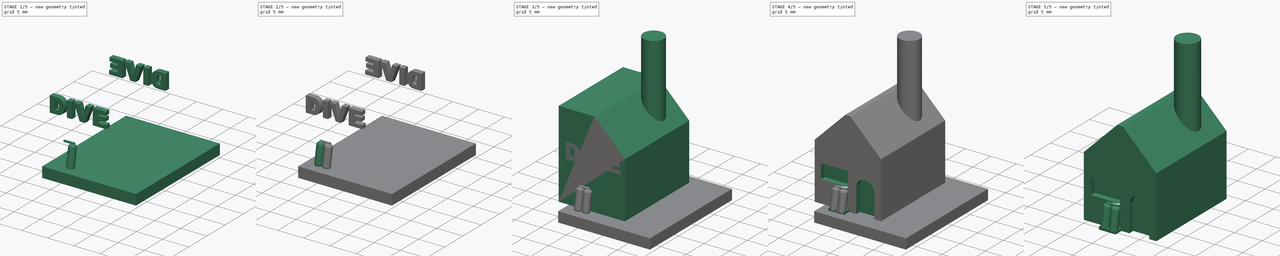
[diagram: build sequence overview — one tinted view per stage of 5, left to right]
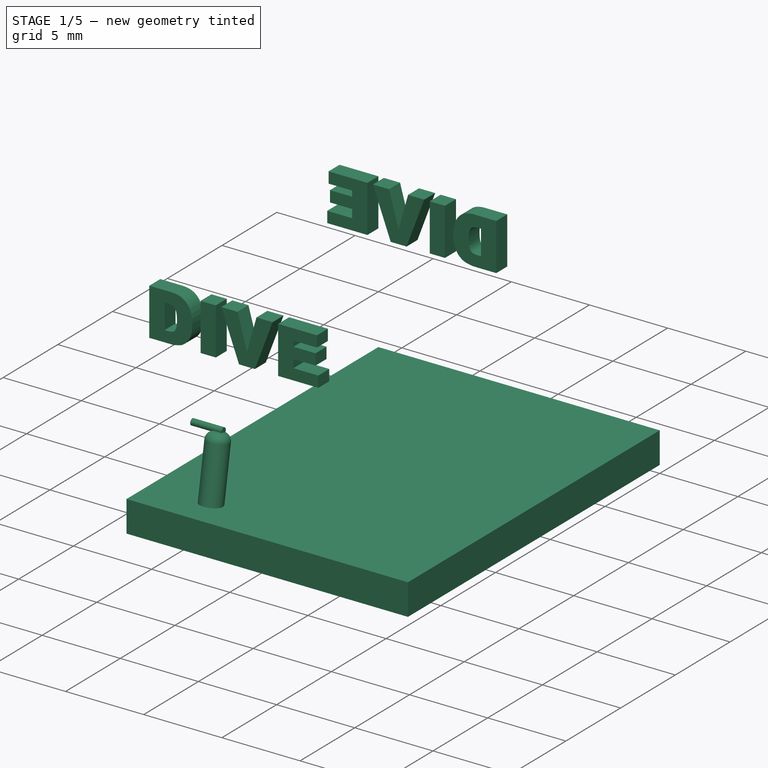
[diagram: stage 1 of 5 — iso view after this stage's code; geometry added in this stage tinted green]
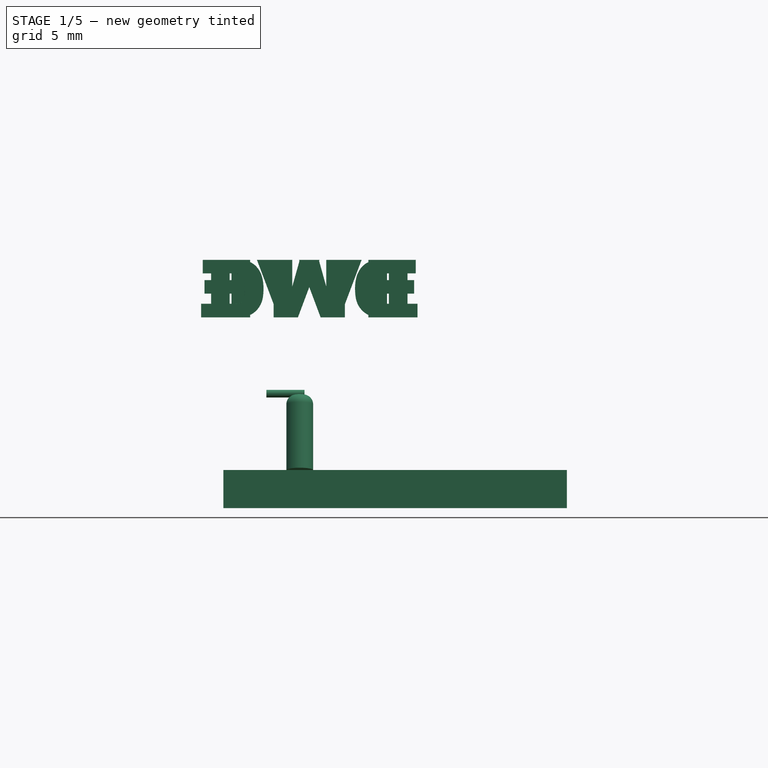
[diagram: stage 1 of 5 — front view after this stage's code; geometry added in this stage tinted green]
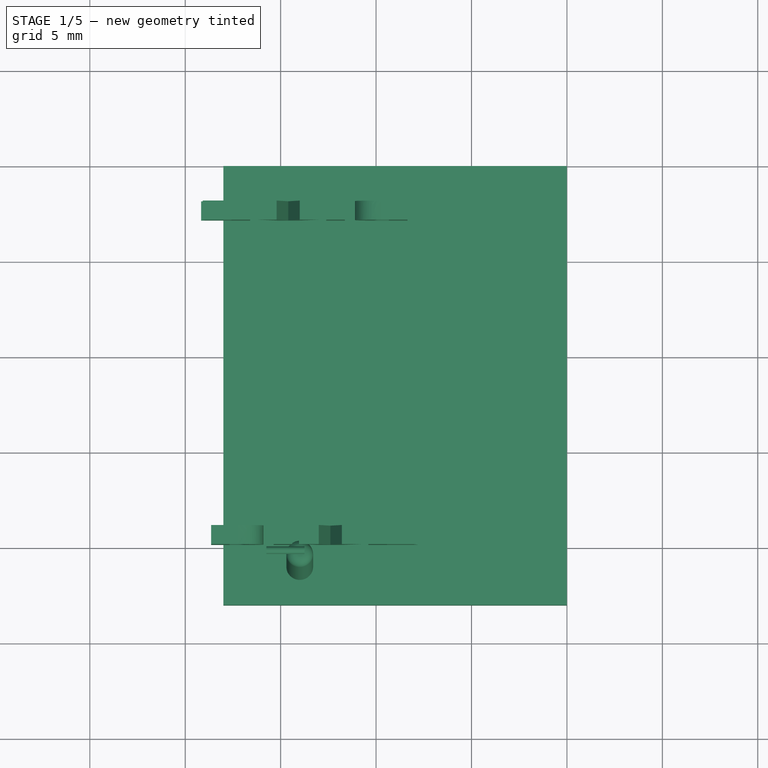
[diagram: stage 1 of 5 — top view after this stage's code; geometry added in this stage tinted green]
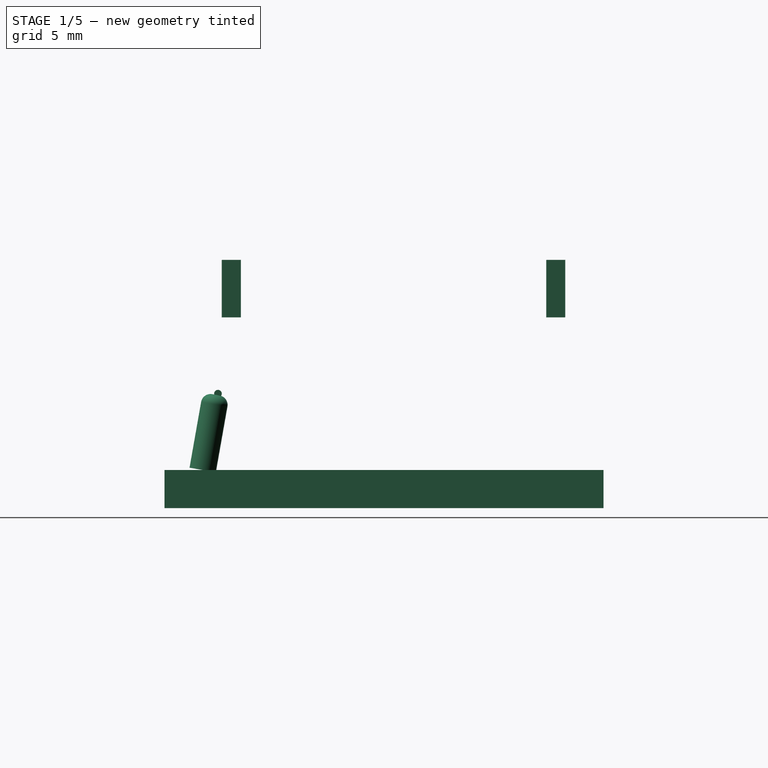
[diagram: stage 1 of 5 — right view after this stage's code; geometry added in this stage tinted green]
FCSTD DOCUMENT  (FreeCAD 0.16R6706 (Git))
Label: Haus
License: All rights reserved
LicenseURL: http://en.wikipedia.org/wiki/All_rights_reserved
objects: Part::MultiFuse×5, Part::Cut×4, Part::Cylinder×4, Part::Fillet×4, Sketcher::SketchObject×3, Part::Box×3, Part::Extrusion×3, PartDesign::Pad×2, PartDesign::Chamfer×2, Part::Part2DObjectPython×2, PartDesign::Pocket×1, PartDesign::Fillet×1
note: 37 computed .brp shape members not serialized (recipe doc carries the construction recipe); baked Part::Feature solids carry a one-line shape summary decoded from their .brp

FEATURE [Part::Cylinder] Cylinder002  label="Zylinder002"
  Angle = 360
  Height = 4
  Placement = pos=(6,-1,0) rot=(-1,0,0;0.174533rad)
  Radius = 0.7
FEATURE [Part::Fillet] Fillet002
  Base = -> Cylinder002
  Edges = 1 edges r=0.5: [Edge1]
FEATURE [Part::Cylinder] Cylinder003  label="Zylinder003"
  Angle = 360
  Height = 2
  Placement = pos=(4.25,-0.2,4) rot=(0,1,0;1.5708rad)
  Radius = 0.2
FEATURE [Part::Part2DObjectPython] ShapeString  # Draft 2D object (typed FeaturePython)
  FontFile = <path>
  Placement = pos=(1,0,8) rot=(1,0,0;1.5708rad)
  Size = 4
  String = DIVE
  Tracking = 0
FEATURE [Part::Extrusion] Extrude
  Base = -> ShapeString
  Dir = (0,1,0)
  Solid = false
FEATURE [Part::Part2DObjectPython] ShapeString001  # Draft 2D object (typed FeaturePython)
  FontFile = <path>
  Placement = pos=(1,0,8) rot=(1,0,0;1.5708rad)
  Size = 4
  String = DIVE
  Tracking = 0
FEATURE [Part::Extrusion] Extrude002
  Base = -> ShapeString001
  Dir = (0,1,0)
  Placement = pos=(13,18,0) rot=(0,0,1;3.14159rad)
  Solid = false
FEATURE [Part::Box] Box002  label="Würfel002"
  Height = 2
  Length = 18
  Placement = pos=(2,-3,-2) rot=(0,0,1;0rad)
  Width = 23
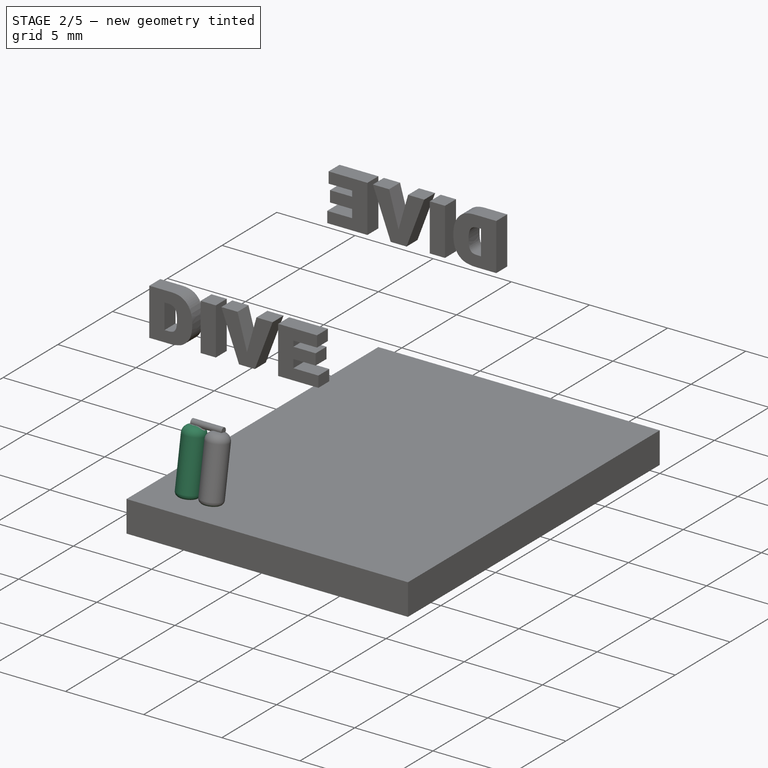
[diagram: stage 2 of 5 — iso view after this stage's code; geometry added in this stage tinted green]
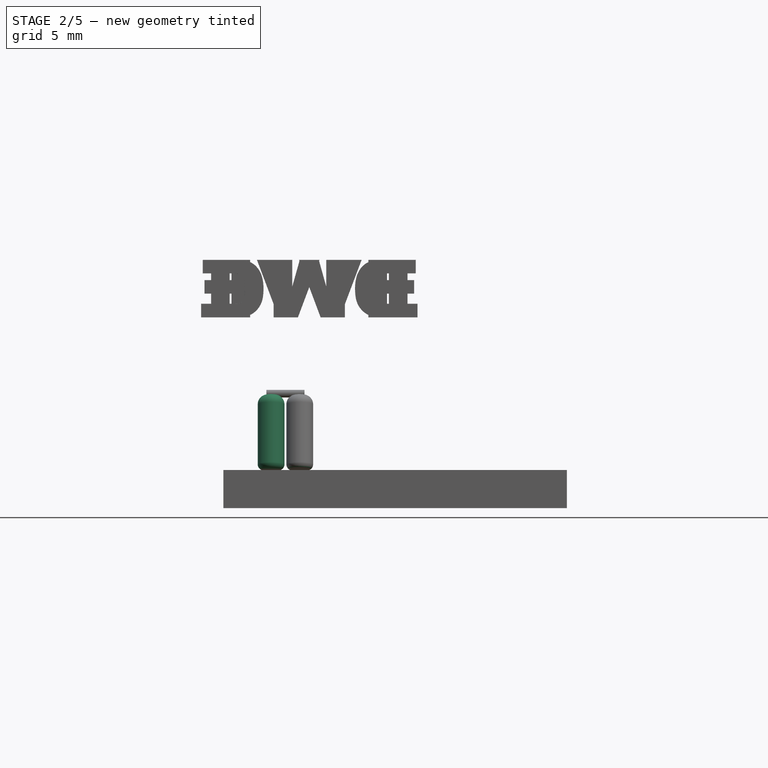
[diagram: stage 2 of 5 — front view after this stage's code; geometry added in this stage tinted green]
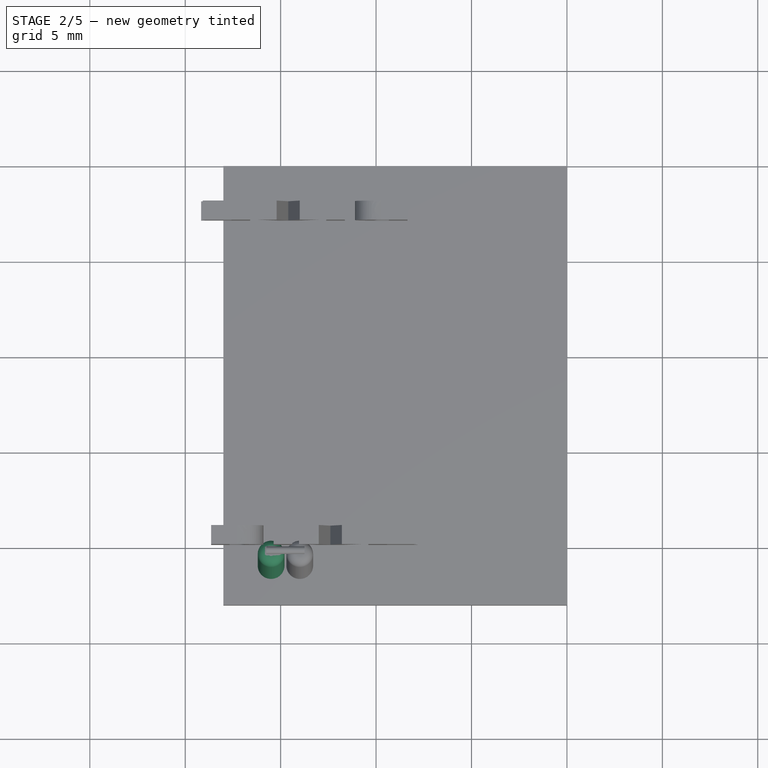
[diagram: stage 2 of 5 — top view after this stage's code; geometry added in this stage tinted green]
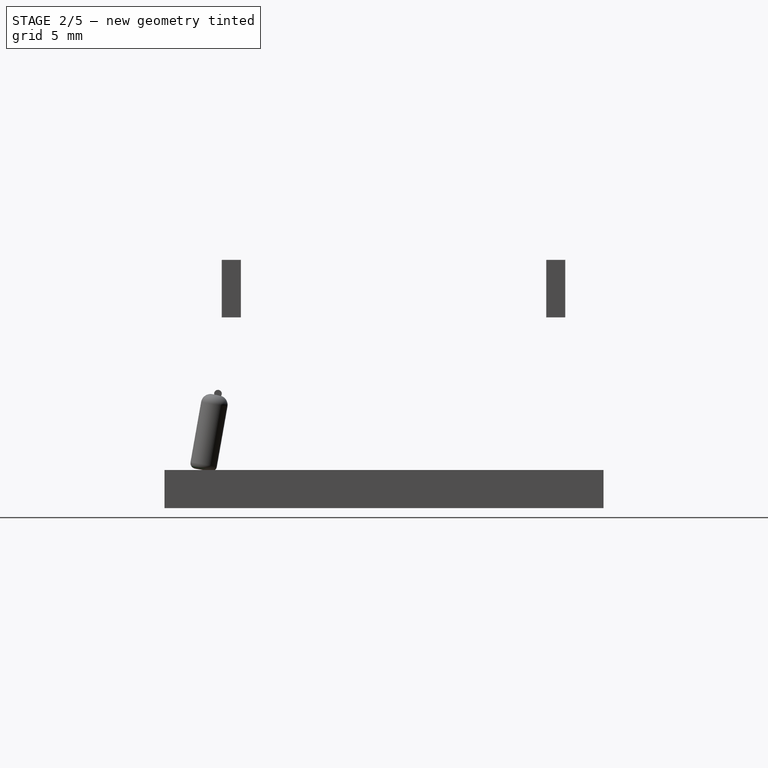
[diagram: stage 2 of 5 — right view after this stage's code; geometry added in this stage tinted green]
FEATURE [Part::Cylinder] Cylinder001  label="Zylinder001"
  Angle = 360
  Height = 4
  Placement = pos=(4.5,-1,0) rot=(-1,0,0;0.174533rad)
  Radius = 0.7
FEATURE [Part::Fillet] Fillet001
  Base = -> Cylinder001
  Edges = 1 edges r=0.5: [Edge1]
FEATURE [Part::Fillet] Fillet003
  Base = -> Fillet001
  Edges = 1 edges r=0.3: [Edge3]
FEATURE [Part::Fillet] Fillet004
  Base = -> Fillet002
  Edges = 1 edges r=0.3: [Edge3]
FEATURE [Part::MultiFuse] Fusion001
  Shapes = -> [Fillet003,Fillet004]
FEATURE [Part::MultiFuse] Fusion002  label="D-20"
  Shapes = -> [Fusion001,Cylinder003]
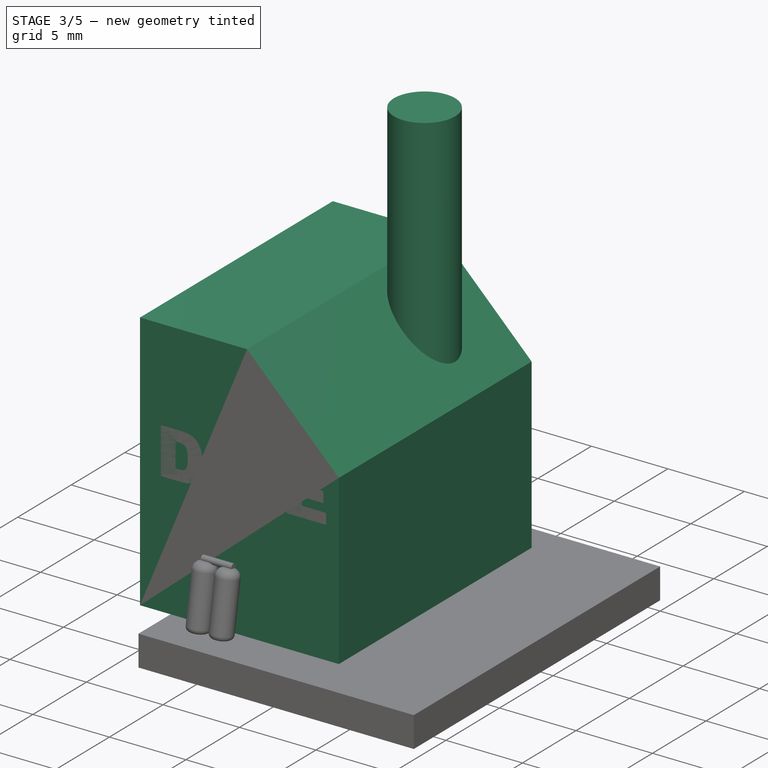
[diagram: stage 3 of 5 — iso view after this stage's code; geometry added in this stage tinted green]
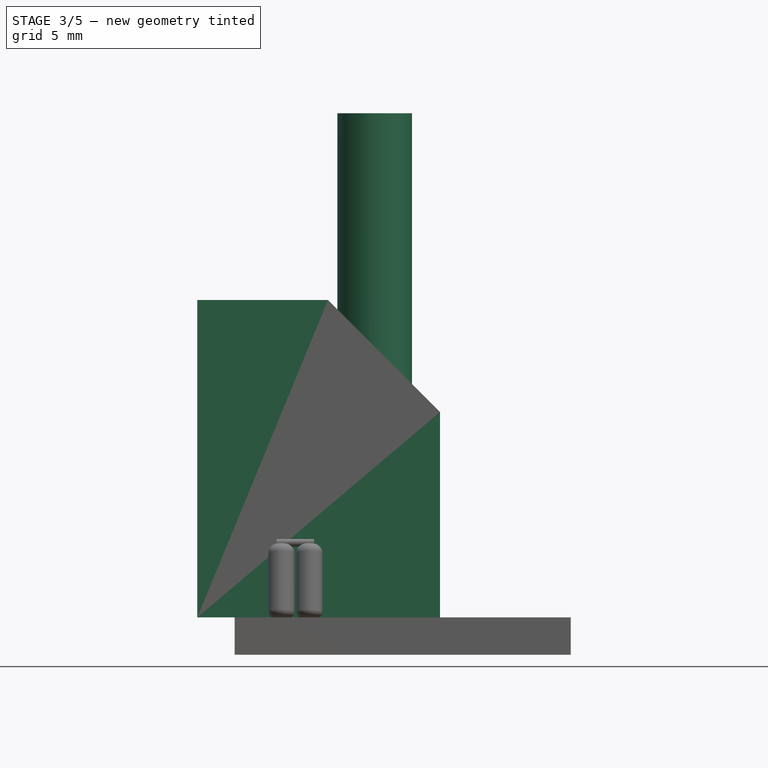
[diagram: stage 3 of 5 — front view after this stage's code; geometry added in this stage tinted green]
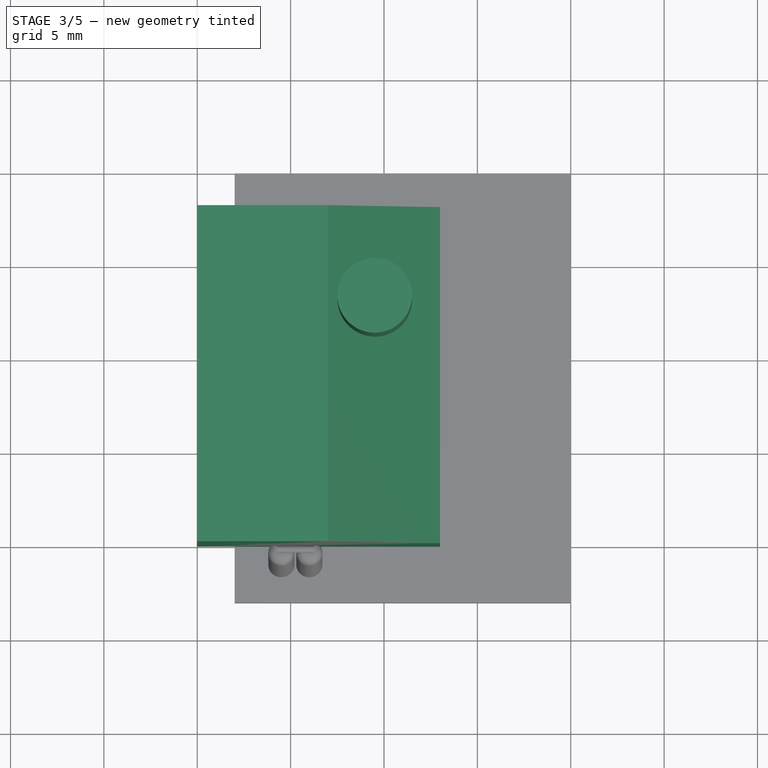
[diagram: stage 3 of 5 — top view after this stage's code; geometry added in this stage tinted green]
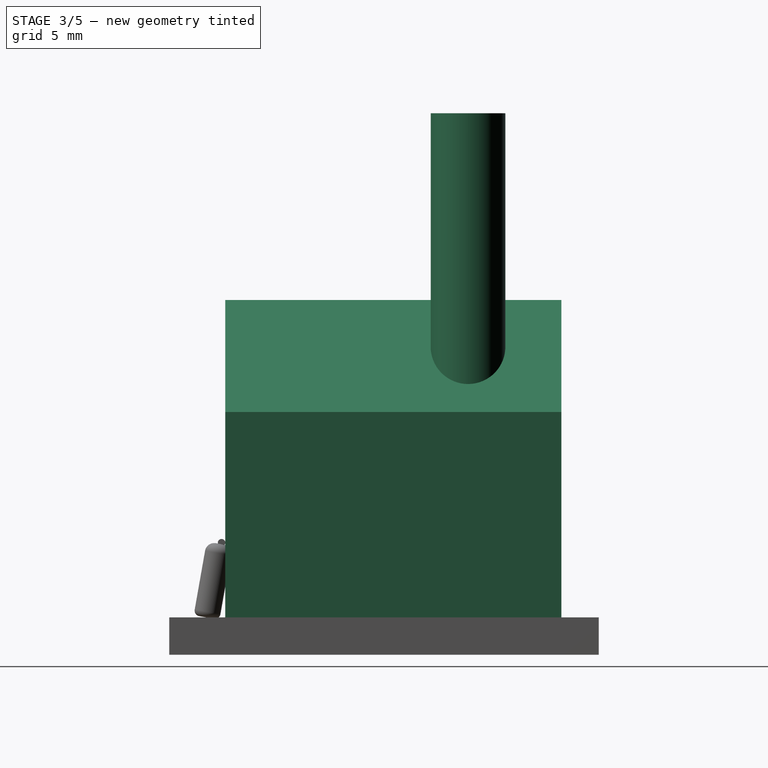
[diagram: stage 3 of 5 — right view after this stage's code; geometry added in this stage tinted green]
FEATURE [Sketcher::SketchObject] Sketch
  sketch-geometry (4):
    g0: LineSegment StartX=0 StartY=18 StartZ=0 EndX=13 EndY=18 EndZ=0
    g1: LineSegment StartX=13 StartY=18 StartZ=0 EndX=13 EndY=0 EndZ=0
    g2: LineSegment StartX=13 StartY=0 StartZ=0 EndX=0 EndY=0 EndZ=0
    g3: LineSegment StartX=0 StartY=0 StartZ=0 EndX=0 EndY=18 EndZ=0
  constraints (11):
    c: Coincident(g0,g1)
    c: Coincident(g1,g2)
    c: Coincident(g2,g3)
    c: Coincident(g3,g0)
    c: Horizontal(g0)
    c: Horizontal(g2)
    c: Vertical(g1)
    c: Vertical(g3)
    c: DistanceX(g2,g1) = 13
    c: DistanceY(g1,g1) = 18
    c: Coincident(g-1,g2)
FEATURE [PartDesign::Pad] Pad
  Length = 17
  Length2 = 100
  Sketch = -> Sketch
  Type = 0
FEATURE [PartDesign::Chamfer] Chamfer
  Base = -> Pad [Edge7]
  Size = 6
FEATURE [Sketcher::SketchObject] Sketch002
  sketch-geometry (1):
    g0: Circle CenterX=6.51884 CenterY=9.61444 CenterZ=0 NormalX=0 NormalY=0 NormalZ=1 Radius=4
  constraints (1):
    c: Radius(g0) = 4
FEATURE [PartDesign::Pad] Pad001
  Length = 5
  Length2 = 100
  Sketch = -> Sketch002
  Type = 0
FEATURE [PartDesign::Fillet] Fillet
  Base = -> Pad001 [Edge3]
  Radius = 3
FEATURE [Part::Cylinder] Cylinder  label="Zylinder"
  Angle = 360
  Height = 16
  Placement = pos=(9.5,13,11) rot=(0,0,1;0rad)
  Radius = 2
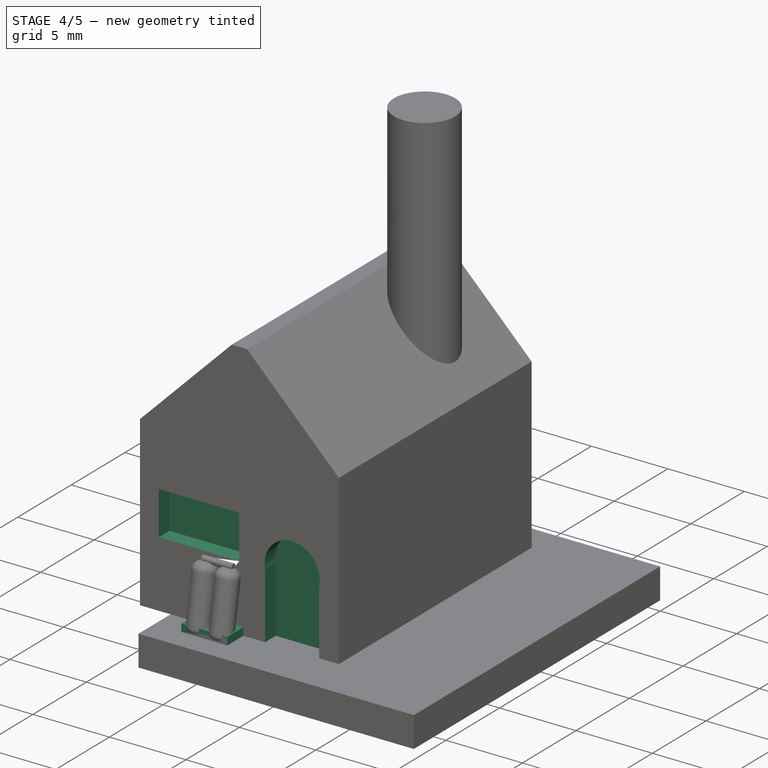
[diagram: stage 4 of 5 — iso view after this stage's code; geometry added in this stage tinted green]
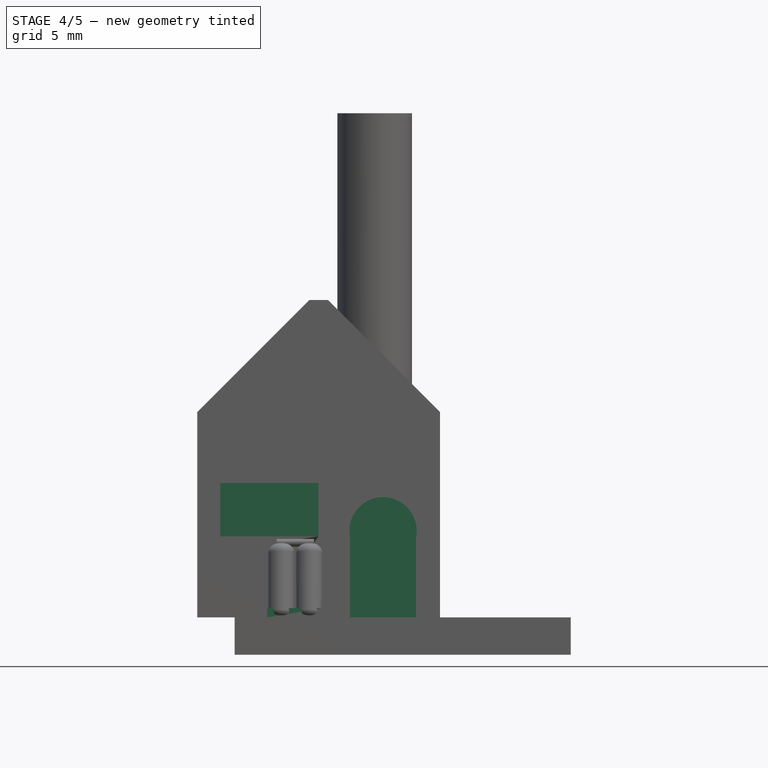
[diagram: stage 4 of 5 — front view after this stage's code; geometry added in this stage tinted green]
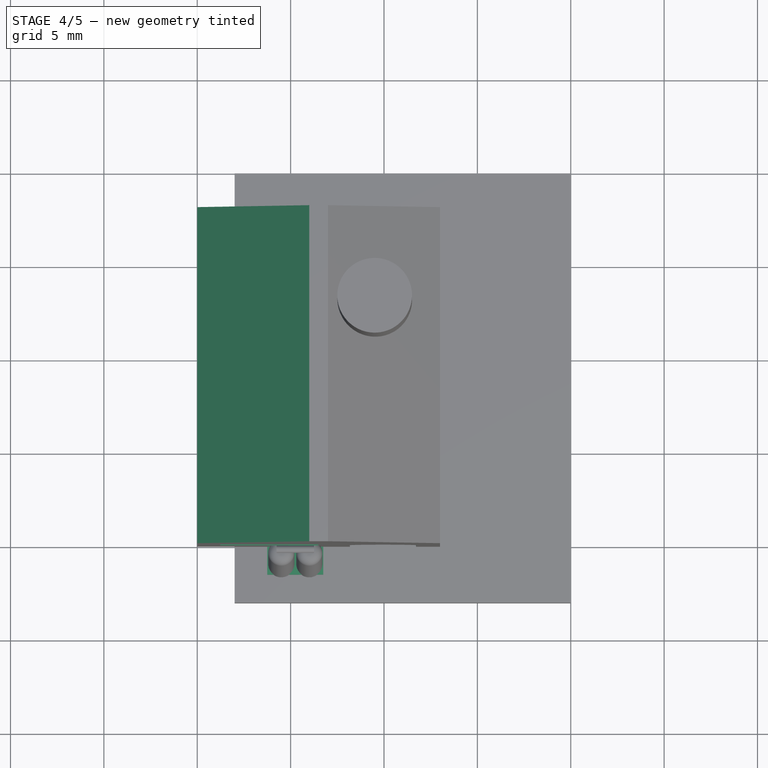
[diagram: stage 4 of 5 — top view after this stage's code; geometry added in this stage tinted green]
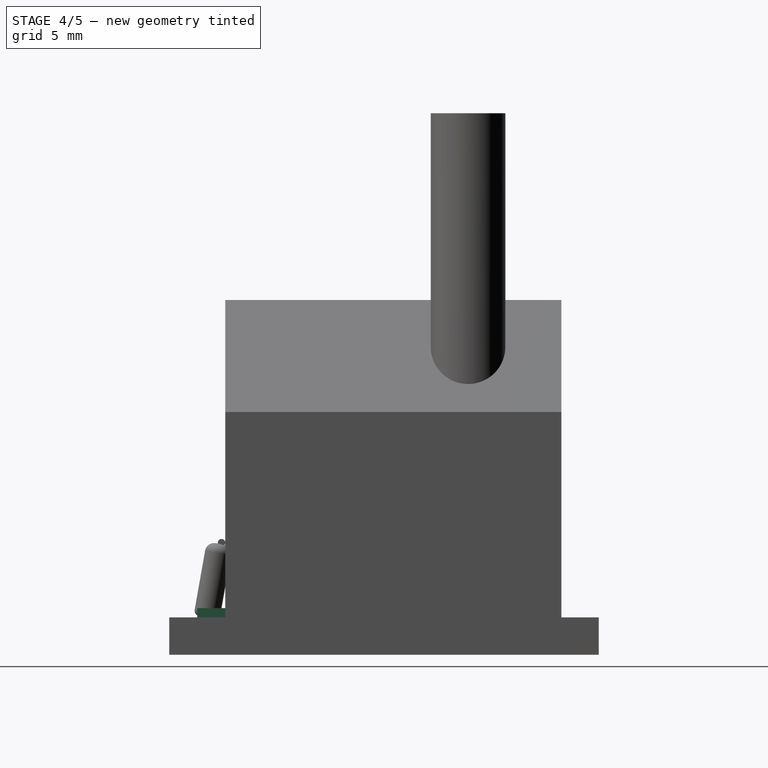
[diagram: stage 4 of 5 — right view after this stage's code; geometry added in this stage tinted green]
FEATURE [PartDesign::Chamfer] Chamfer001
  Base = -> Chamfer [Edge13]
  Size = 6
FEATURE [Sketcher::SketchObject] Sketch001
  Placement = pos=(0,0,0) rot=(1,0,0;1.5708rad)
  Support = -> Chamfer001 [Face8]
  sketch-geometry (8):
    g0: LineSegment StartX=1.22892 StartY=7.19787 StartZ=0 EndX=6.48719 EndY=7.19787 EndZ=0
    g1: LineSegment StartX=6.48719 StartY=7.19787 StartZ=0 EndX=6.48719 EndY=4.34298 EndZ=0
    g2: LineSegment StartX=6.48719 StartY=4.34298 StartZ=0 EndX=1.22892 EndY=4.34298 EndZ=0
    g3: LineSegment StartX=1.22892 StartY=4.34298 StartZ=0 EndX=1.22892 EndY=7.19787 EndZ=0
    g4: LineSegment StartX=8.17368 StartY=4.32552 StartZ=0 EndX=8.17368 EndY=0 EndZ=0
    g5: LineSegment StartX=11.7128 StartY=4.27352 StartZ=0 EndX=11.7128 EndY=0 EndZ=0
    g6: ArcOfCircle CenterX=9.94822 CenterY=4.63891 CenterZ=0 NormalX=0 NormalY=0 NormalZ=1 Radius=1.802 StartAngle=6.07901 EndAngle=9.59958
    g7: LineSegment StartX=8.17368 StartY=0 StartZ=0 EndX=11.7128 EndY=0 EndZ=0
  constraints (16):
    c: Coincident(g0,g1)
    c: Coincident(g1,g2)
    c: Coincident(g2,g3)
    c: Coincident(g3,g0)
    c: Horizontal(g0)
    c: Horizontal(g2)
    c: Vertical(g1)
    c: Vertical(g3)
    c: PointOnObject(g5,g-1)
    c: PointOnObject(g4,g-1)
    c: Perpendicular(g-1,g5)
    c: Perpendicular(g-1,g4)
    c: Coincident(g6,g5)
    c: Coincident(g6,g4)
    c: Coincident(g7,g4)
    c: Coincident(g7,g5)
FEATURE [PartDesign::Pocket] Pocket
  Length = 1
  Sketch = -> Sketch001
  Type = 0
FEATURE [Part::Cut] Cut
  Base = -> Pocket
  Tool = -> Fillet
FEATURE [Part::MultiFuse] Fusion
  Shapes = -> [Cylinder,Cut]
FEATURE [Part::Box] Box  label="Würfel"
  Height = 0.5
  Length = 3
  Placement = pos=(3.75,-1.5,0) rot=(0,0,1;0rad)
  Width = 2
FEATURE [Part::MultiFuse] Fusion003
  Shapes = -> [Fusion002,Fusion]
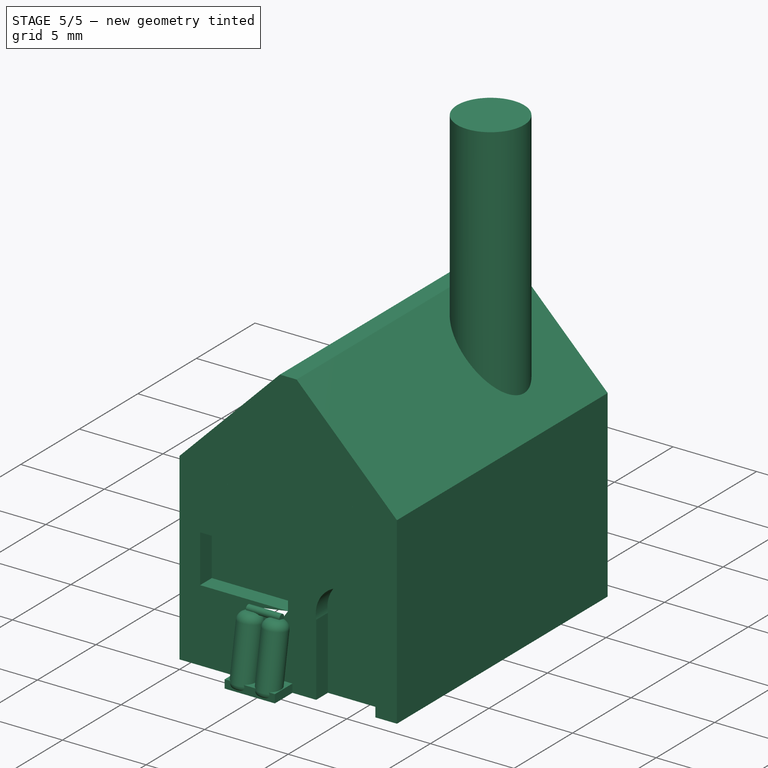
[diagram: stage 5 of 5 — iso view after this stage's code; geometry added in this stage tinted green]
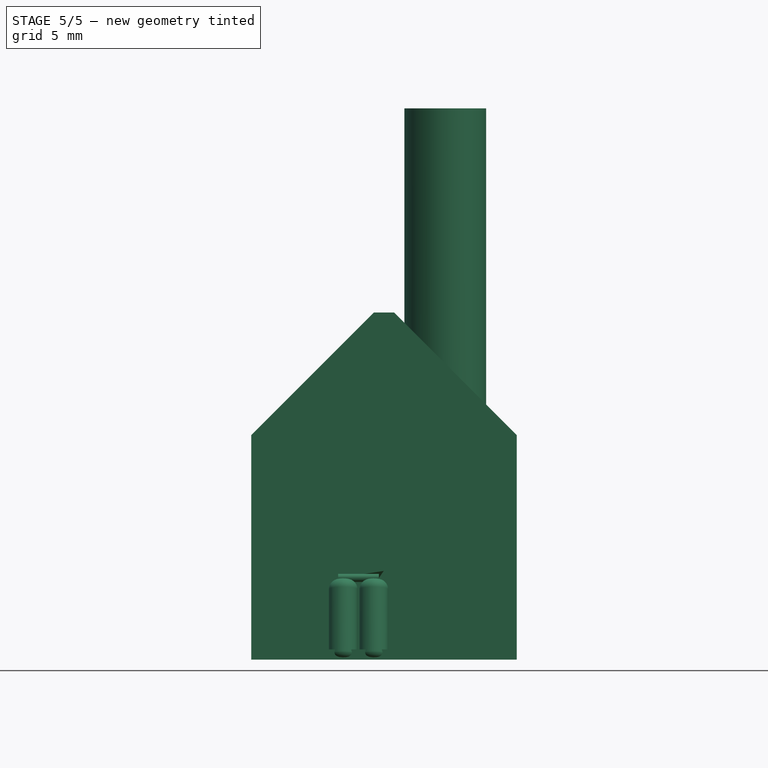
[diagram: stage 5 of 5 — front view after this stage's code; geometry added in this stage tinted green]
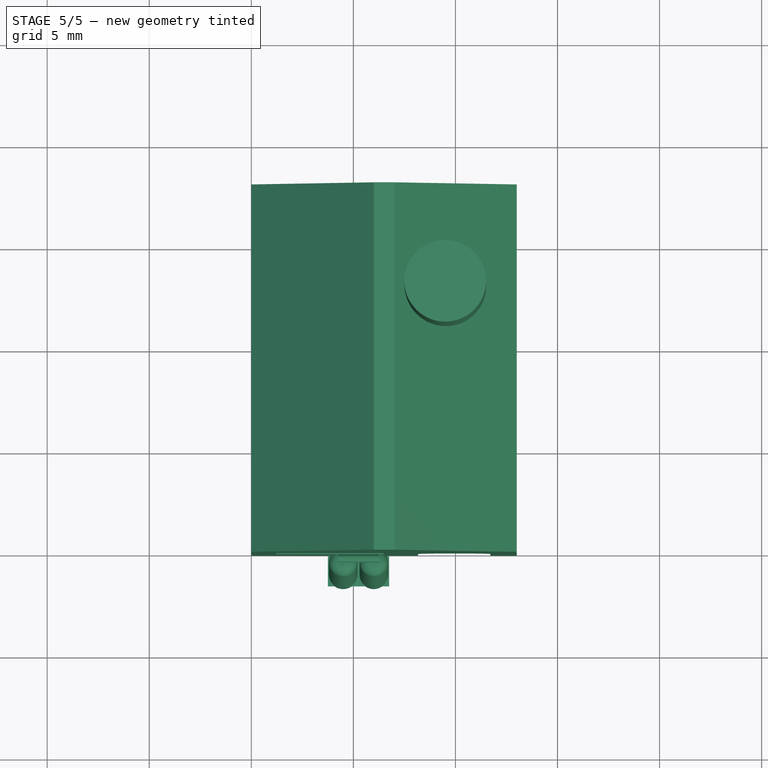
[diagram: stage 5 of 5 — top view after this stage's code; geometry added in this stage tinted green]
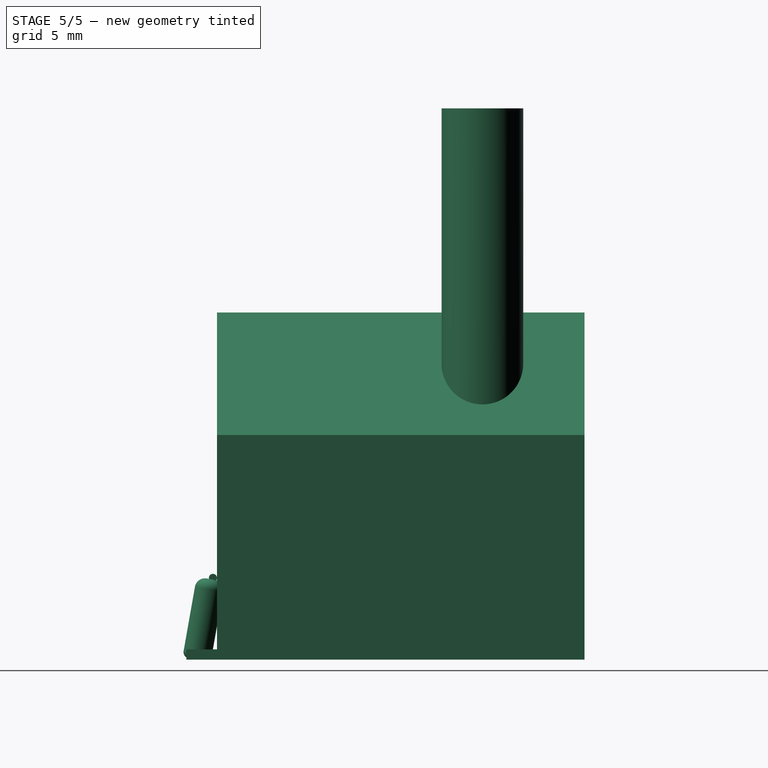
[diagram: stage 5 of 5 — right view after this stage's code; geometry added in this stage tinted green]
FEATURE [Part::MultiFuse] Fusion004
  Shapes = -> [Box,Fusion003]
FEATURE [Part::Extrusion] Extrude001
  Base = -> ShapeString
  Dir = (0,1,0)
  Solid = false
FEATURE [Part::Cut] Cut001
  Base = -> Fusion004
  Tool = -> Extrude
FEATURE [Part::Cut] Cut002
  Base = -> Cut001
  Tool = -> Extrude002
FEATURE [Part::Box] Box001  label="Würfel001"
  Height = 0.5
  Length = 3
  Placement = pos=(3.75,-1.5,0) rot=(0,0,1;0rad)
  Width = 2
FEATURE [Part::Cut] Cut003
  Base = -> Cut002
  Tool = -> Box002
note: 2 file-system paths scrubbed to <path> (originals preserved in the JSON sidecar)
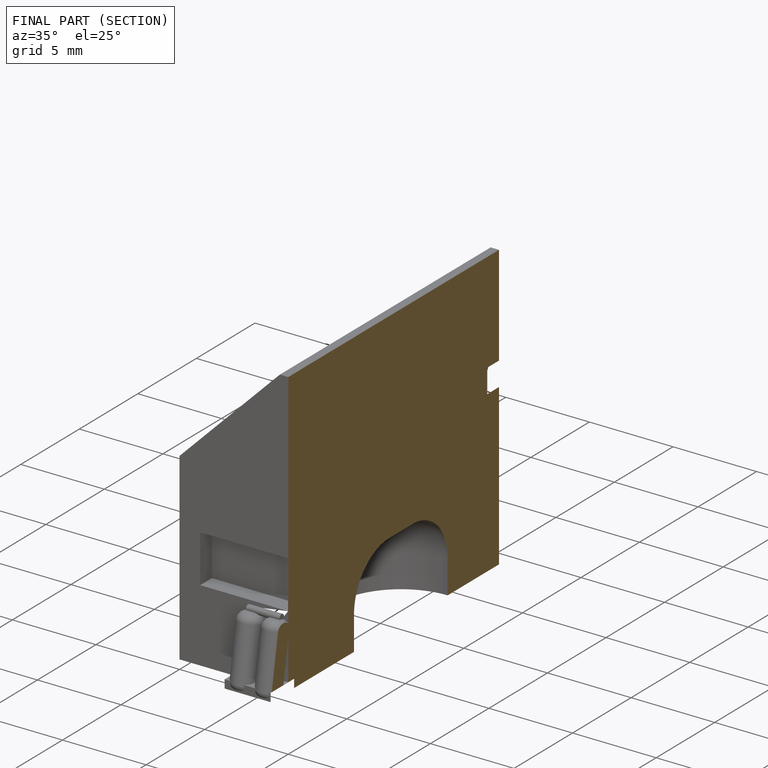
[diagram: finished part — half-section view (interior)]
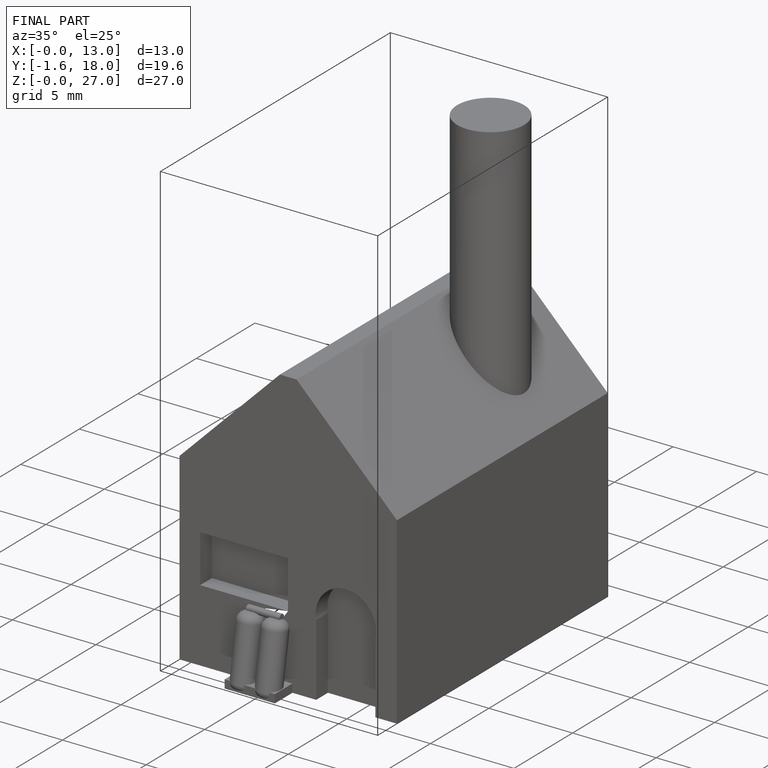
[diagram: finished part — iso view with bounding-box wireframe]
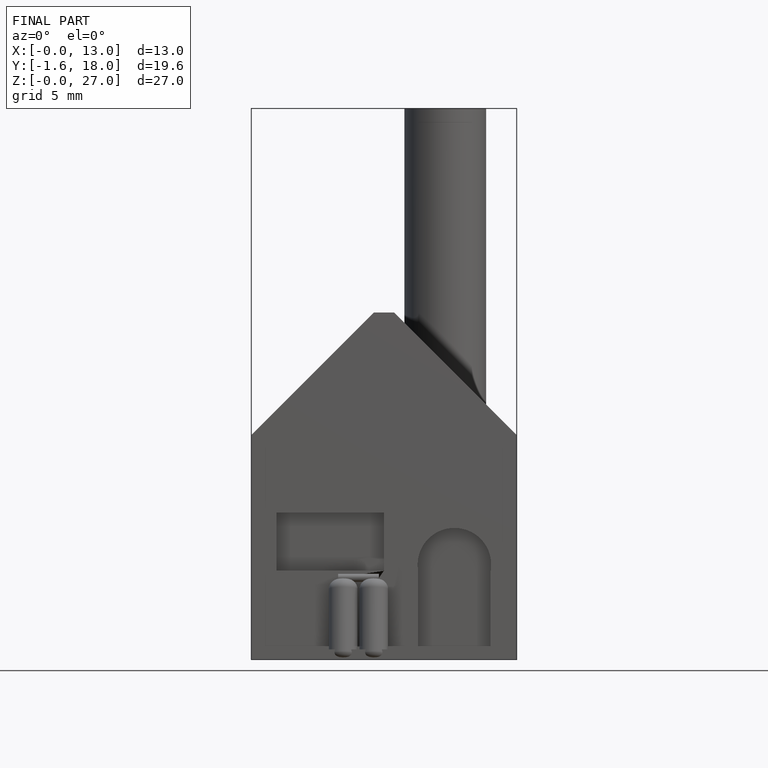
[diagram: finished part — front view with bounding-box wireframe]
